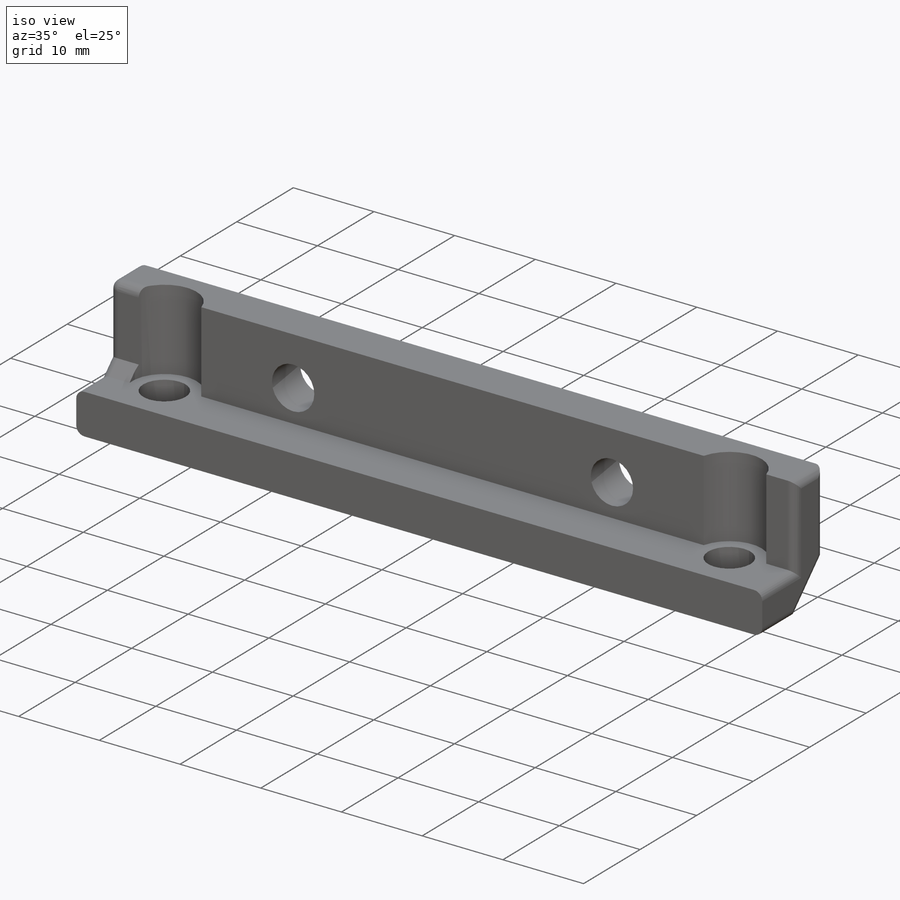
[diagram: iso view]
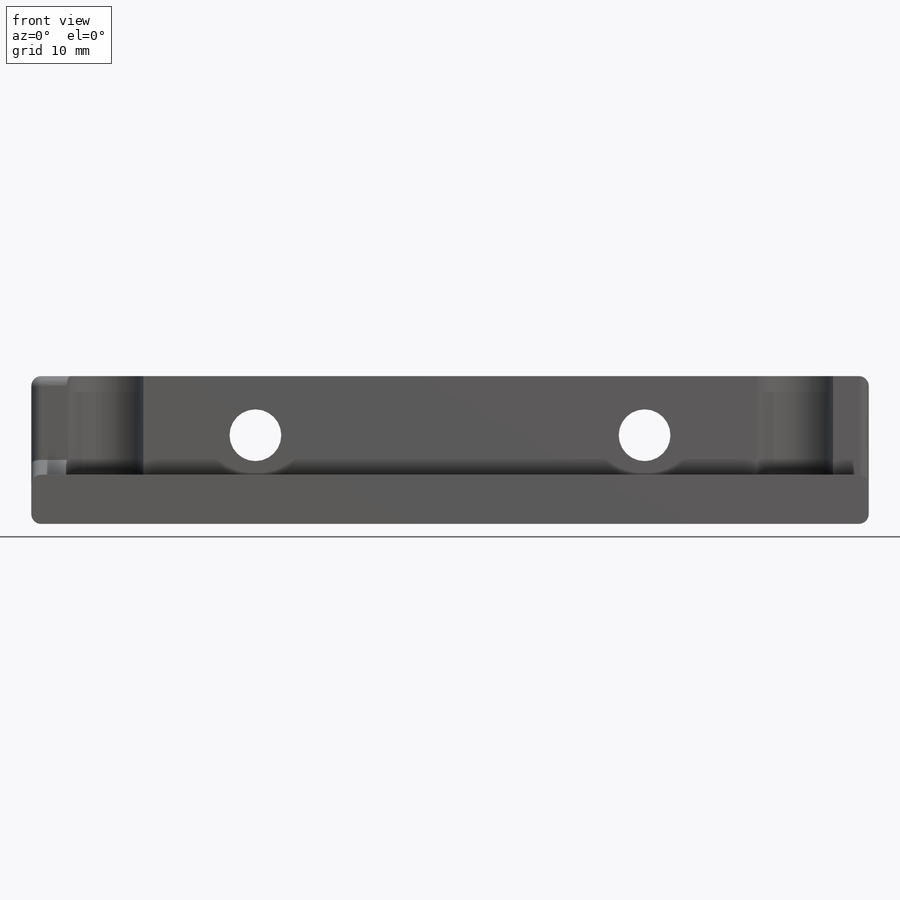
[diagram: front view]
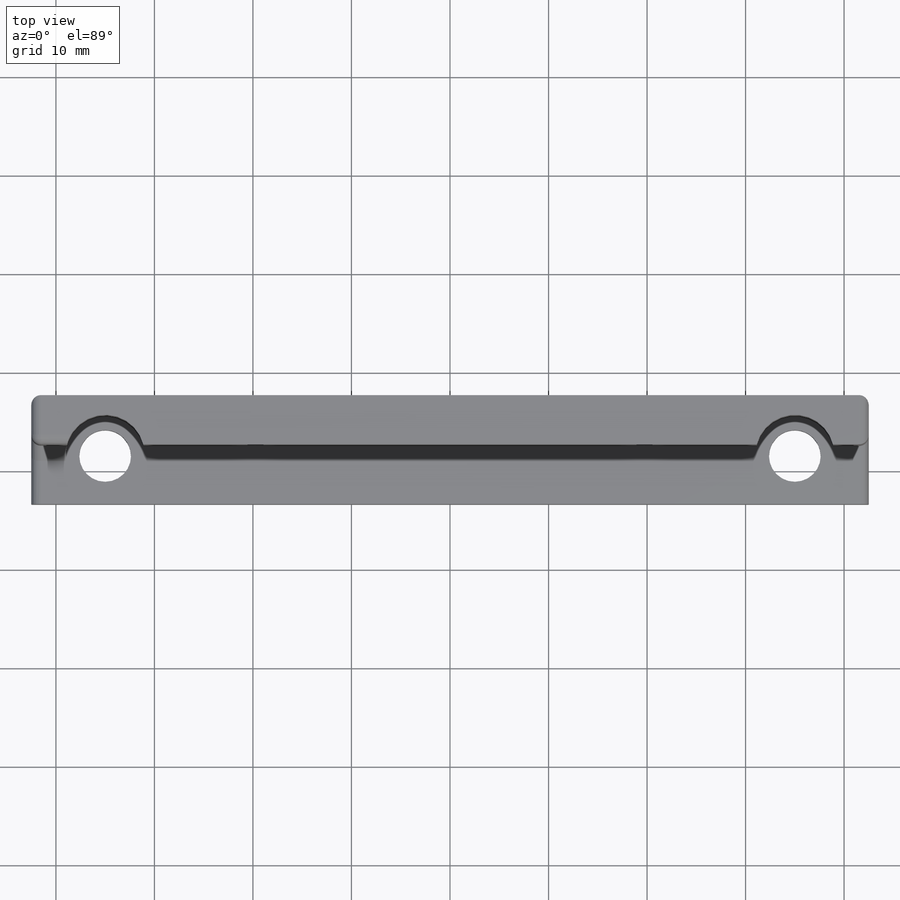
[diagram: top view]
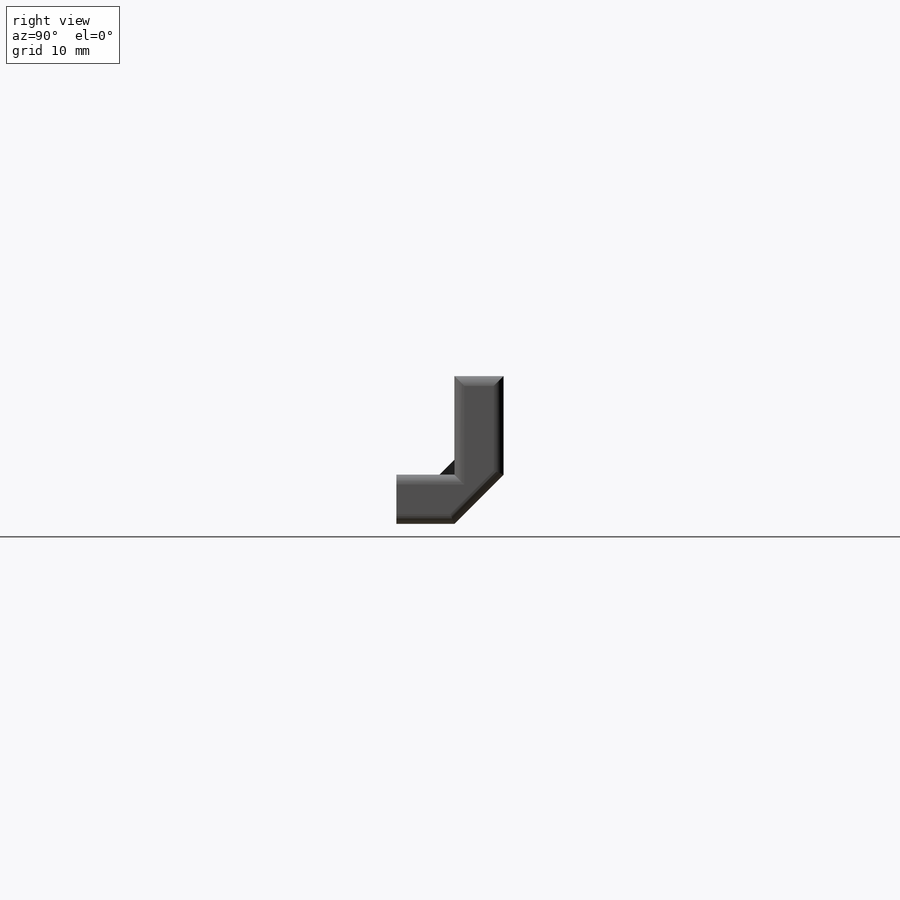
[diagram: right view]
SOLIDWORKS PART (.sldprt)
format: sldprt  version: not decoded by parser v0  size: 296,448 bytes
history: native  units: mm
features: sketch x6, cut_extrude x4, extrude x2, chamfer x2, fillet x2, material x1 (+13 scaffold rows collapsed)
feature tree (30):
  scaffold x13  (default folders/planes/origin — collapsed)
  material  "Material <not specified>"
  sketch  "Sketch1"  dims[D1=15.0mm D2=85.0mm]
  extrude  "Boss-Extrude2"  Depth=5mm
  sketch  "Sketch2"  dims[D1=5.0mm]
  extrude  "Boss-Extrude3"  Depth=10mm
  sketch  "Sketch3"  dims[c1.D1=5.25mm c1.D2=5.25mm c1.D3=5.25mm c1.D4=5.25mm c2.D3=12.0mm c2.D4=24.0mm c2.D5=9.0mm c2.D6=75.0mm c2.D1=7.5mm c2.D2=7.5mm c3.D1=7.5mm]
  cut_extrude  "Cut-Extrude1"  Depth=20mm
  chamfer  "Chamfer1"  Distance=1.5mm Angle=45deg
  chamfer  "Chamfer2"  Distance=5mm Angle=45deg
  fillet  "Fillet1"  Radius=1mm
  fillet  "Fillet2"  Radius=1mm
  sketch  "Sketch6"  dims[D1=5.25mm D2=5.25mm D3=21.75mm D4=4.0mm D5=39.5mm]
  cut_extrude  "Cut-Extrude4"  [1 undecoded]
  sketch  "Sketch7"  dims[D1=8.0mm]
  cut_extrude  "Cut-Extrude5"  [1 undecoded]
  sketch  "Sketch8"
  cut_extrude  "Cut-Extrude6"  [1 undecoded]
decode coverage: 12 of 16 modeling features carry decoded parameters
note: 3 parameter values undecoded
summary: no parameter record found for 3 features
note: suppression state not decoded; provenance and decode notes live in map.json
